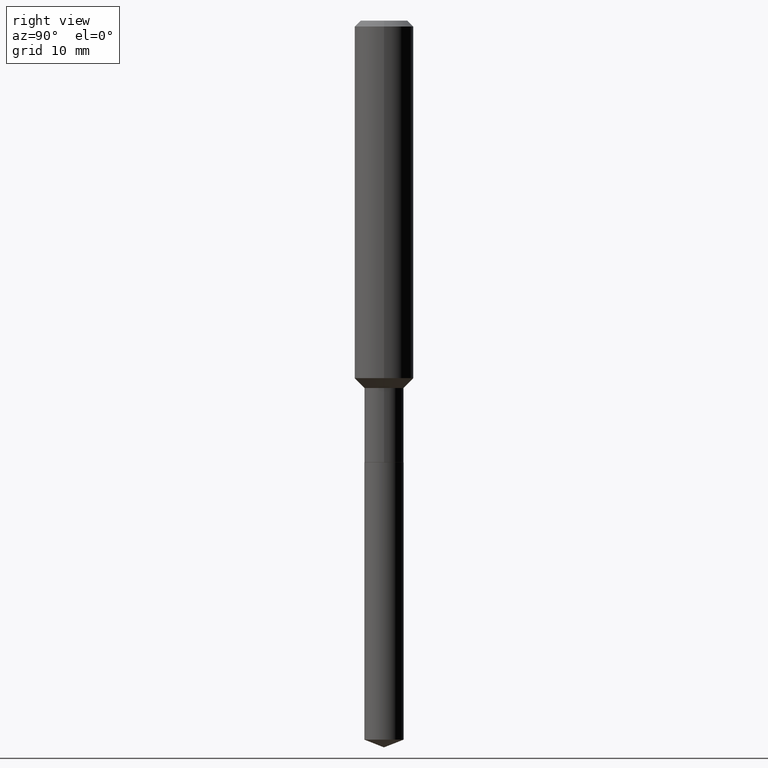
[diagram: clean part render]
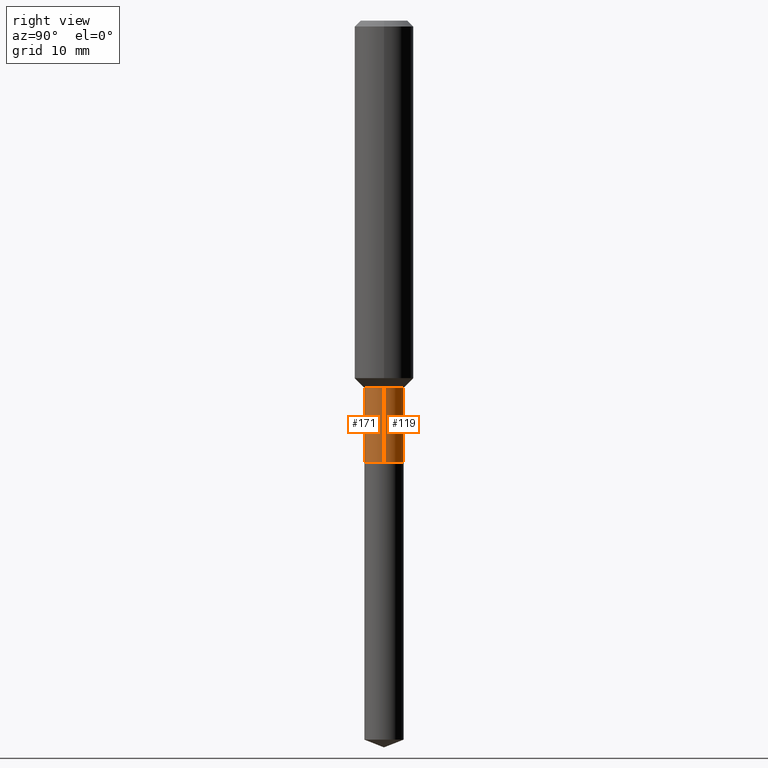
[diagram: same view with one multi-face feature highlighted, each face labeled with its STEP entity id]
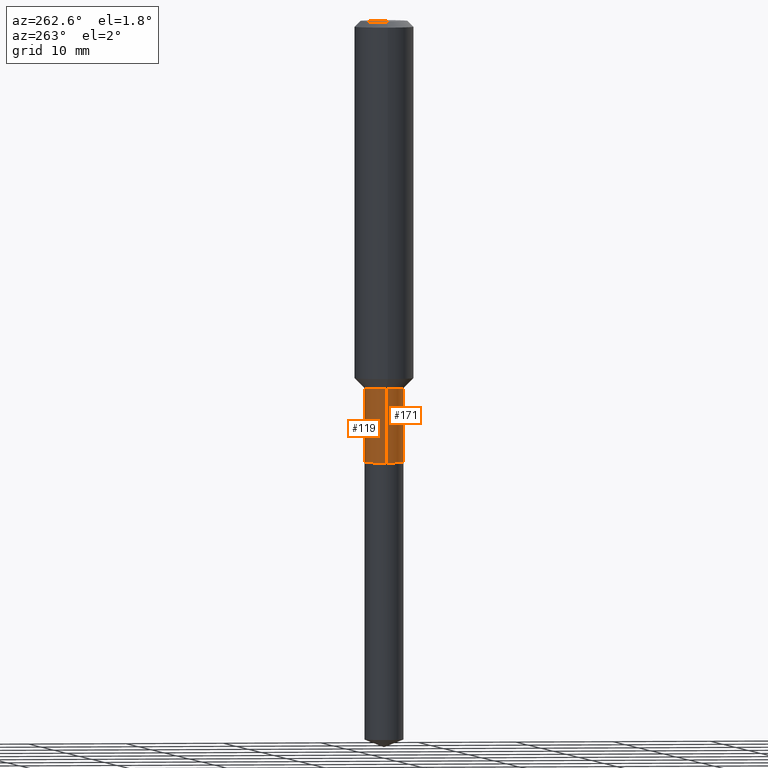
[diagram: same view with one multi-face feature highlighted, each face labeled with its STEP entity id]
A machine part, right view. The highlighted faces form ONE feature: a constant-radius fillet chain: 2 tangent blend faces with common blend radius 2.0002 mm. The faces share edges in the B-rep.
A second angle (auxiliary view) of the same feature is appended — it is thin or edge-on in the first view.
Their STEP definitions:
[1] entity #119 (Cylinder):
#2 = VERTEX_POINT ( 'NONE', #315 ) ;
#27 = AXIS2_PLACEMENT_3D ( 'NONE', #473, #318, #391 ) ;
#32 = CARTESIAN_POINT ( 'NONE',  ( 0.07874999999999997280, -5.499083108677933457E-16, 3.839989210939298316E-30 ) ) ;
#37 = VERTEX_POINT ( 'NONE', #124 ) ;
#38 = CARTESIAN_POINT ( 'NONE',  ( 4.330436161992639608E-29, -6.182715154823442375E-15, -1.770799999999999930 ) ) ;
#65 = VERTEX_POINT ( 'NONE', #204 ) ;
#89 = EDGE_CURVE ( 'NONE', #2, #37, #125, .T. ) ;
#119 = ADVANCED_FACE ( 'NONE', ( #469 ), #428, .T. ) ;
#124 = CARTESIAN_POINT ( 'NONE',  ( -0.07874999999999995892, -5.102233734656965609E-15, -1.472399999999999487 ) ) ;
#125 = CIRCLE ( 'NONE', #27, 0.07874999999999995892 ) ;
#138 = DIRECTION ( 'NONE',  ( -2.445468806185136877E-29, 3.491481338843145188E-15, 1.000000000000000000 ) ) ;
#149 = LINE ( 'NONE', #32, #474 ) ;
#168 = DIRECTION ( 'NONE',  ( -2.445468806185136597E-29, 3.491481338843145583E-15, 1.000000000000000000 ) ) ;
#181 = VERTEX_POINT ( 'NONE', #268 ) ;
#200 = VECTOR ( 'NONE', #138, 39.37007874015748143 ) ;
#204 = CARTESIAN_POINT ( 'NONE',  ( 0.07875000000000000056, -6.732623465691234932E-15, -1.770799999999999930 ) ) ;
#218 = ORIENTED_EDGE ( 'NONE', *, *, #314, .T. ) ;
#225 = CARTESIAN_POINT ( 'NONE',  ( -0.07874999999999997280, 5.595524044110787031E-16, -3.873661383575737091E-30 ) ) ;
#262 = EDGE_LOOP ( 'NONE', ( #312, #218, #292, #343 ) ) ;
#268 = CARTESIAN_POINT ( 'NONE',  ( -0.07875000000000000056, -5.102233734656965609E-15, -1.770799999999999930 ) ) ;
#274 = DIRECTION ( 'NONE',  ( 1.000000000000000000, -6.982962677686261977E-15, 0.000000000000000000 ) ) ;
#283 = DIRECTION ( 'NONE',  ( 1.000000000000000000, -6.982962677686267499E-15, 4.876176775795935793E-29 ) ) ;
#292 = ORIENTED_EDGE ( 'NONE', *, *, #89, .F. ) ;
#304 = DIRECTION ( 'NONE',  ( -2.445468806185136877E-29, 3.491481338843145188E-15, 1.000000000000000000 ) ) ;
#312 = ORIENTED_EDGE ( 'NONE', *, *, #358, .T. ) ;
#314 = EDGE_CURVE ( 'NONE', #181, #37, #412, .T. ) ;
#315 = CARTESIAN_POINT ( 'NONE',  ( 0.07874999999999995892, -5.690765434180439003E-15, -1.472399999999999487 ) ) ;
#318 = DIRECTION ( 'NONE',  ( -2.445468806185136597E-29, 3.491481338843145583E-15, 1.000000000000000000 ) ) ;
#321 = EDGE_CURVE ( 'NONE', #65, #2, #149, .T. ) ;
#339 = AXIS2_PLACEMENT_3D ( 'NONE', #38, #468, #274 ) ;
#343 = ORIENTED_EDGE ( 'NONE', *, *, #321, .F. ) ;
#355 = CARTESIAN_POINT ( 'NONE',  ( 0.000000000000000000, 0.000000000000000000, 0.000000000000000000 ) ) ;
#358 = EDGE_CURVE ( 'NONE', #65, #181, #362, .T. ) ;
#361 = AXIS2_PLACEMENT_3D ( 'NONE', #355, #168, #283 ) ;
#362 = CIRCLE ( 'NONE', #339, 0.07875000000000000056 ) ;
#391 = DIRECTION ( 'NONE',  ( 1.000000000000000000, -6.982962677686265922E-15, 0.000000000000000000 ) ) ;
#412 = LINE ( 'NONE', #225, #200 ) ;
#428 = CYLINDRICAL_SURFACE ( 'NONE', #361, 0.07874999999999997280 ) ;
#468 = DIRECTION ( 'NONE',  ( -2.445468806185136597E-29, 3.491481338843145583E-15, 1.000000000000000000 ) ) ;
#469 = FACE_OUTER_BOUND ( 'NONE', #262, .T. ) ;
#473 = CARTESIAN_POINT ( 'NONE',  ( 3.600708270226994361E-29, -5.140857123312645658E-15, -1.472399999999999487 ) ) ;
#474 = VECTOR ( 'NONE', #304, 39.37007874015748143 ) ;
[2] entity #171 (Cylinder):
#2 = VERTEX_POINT ( 'NONE', #315 ) ;
#32 = CARTESIAN_POINT ( 'NONE',  ( 0.07874999999999997280, -5.499083108677933457E-16, 3.839989210939298316E-30 ) ) ;
#37 = VERTEX_POINT ( 'NONE', #124 ) ;
#59 = CARTESIAN_POINT ( 'NONE',  ( 3.600708270226994361E-29, -5.140857123312645658E-15, -1.472399999999999487 ) ) ;
#65 = VERTEX_POINT ( 'NONE', #204 ) ;
#73 = DIRECTION ( 'NONE',  ( -2.445468806185136597E-29, 3.491481338843145583E-15, 1.000000000000000000 ) ) ;
#99 = AXIS2_PLACEMENT_3D ( 'NONE', #121, #73, #230 ) ;
#113 = ORIENTED_EDGE ( 'NONE', *, *, #314, .F. ) ;
#121 = CARTESIAN_POINT ( 'NONE',  ( 4.330436161992639608E-29, -6.182715154823442375E-15, -1.770799999999999930 ) ) ;
#124 = CARTESIAN_POINT ( 'NONE',  ( -0.07874999999999995892, -5.102233734656965609E-15, -1.472399999999999487 ) ) ;
#138 = DIRECTION ( 'NONE',  ( -2.445468806185136877E-29, 3.491481338843145188E-15, 1.000000000000000000 ) ) ;
#149 = LINE ( 'NONE', #32, #474 ) ;
#171 = ADVANCED_FACE ( 'NONE', ( #219 ), #253, .T. ) ;
#179 = EDGE_CURVE ( 'NONE', #37, #2, #427, .T. ) ;
#181 = VERTEX_POINT ( 'NONE', #268 ) ;
#183 = DIRECTION ( 'NONE',  ( 1.000000000000000000, -6.982962677686265922E-15, 0.000000000000000000 ) ) ;
#200 = VECTOR ( 'NONE', #138, 39.37007874015748143 ) ;
#204 = CARTESIAN_POINT ( 'NONE',  ( 0.07875000000000000056, -6.732623465691234932E-15, -1.770799999999999930 ) ) ;
#211 = AXIS2_PLACEMENT_3D ( 'NONE', #59, #407, #183 ) ;
#215 = ORIENTED_EDGE ( 'NONE', *, *, #397, .T. ) ;
#219 = FACE_OUTER_BOUND ( 'NONE', #477, .T. ) ;
#221 = ORIENTED_EDGE ( 'NONE', *, *, #321, .T. ) ;
#222 = DIRECTION ( 'NONE',  ( -2.445468806185136597E-29, 3.491481338843145583E-15, 1.000000000000000000 ) ) ;
#225 = CARTESIAN_POINT ( 'NONE',  ( -0.07874999999999997280, 5.595524044110787031E-16, -3.873661383575737091E-30 ) ) ;
#230 = DIRECTION ( 'NONE',  ( 1.000000000000000000, -6.982962677686261977E-15, 0.000000000000000000 ) ) ;
#253 = CYLINDRICAL_SURFACE ( 'NONE', #346, 0.07874999999999997280 ) ;
#265 = CARTESIAN_POINT ( 'NONE',  ( 0.000000000000000000, 0.000000000000000000, 0.000000000000000000 ) ) ;
#268 = CARTESIAN_POINT ( 'NONE',  ( -0.07875000000000000056, -5.102233734656965609E-15, -1.770799999999999930 ) ) ;
#304 = DIRECTION ( 'NONE',  ( -2.445468806185136877E-29, 3.491481338843145188E-15, 1.000000000000000000 ) ) ;
#314 = EDGE_CURVE ( 'NONE', #181, #37, #412, .T. ) ;
#315 = CARTESIAN_POINT ( 'NONE',  ( 0.07874999999999995892, -5.690765434180439003E-15, -1.472399999999999487 ) ) ;
#321 = EDGE_CURVE ( 'NONE', #65, #2, #149, .T. ) ;
#333 = ORIENTED_EDGE ( 'NONE', *, *, #179, .F. ) ;
#346 = AXIS2_PLACEMENT_3D ( 'NONE', #265, #222, #372 ) ;
#372 = DIRECTION ( 'NONE',  ( 1.000000000000000000, -6.982962677686267499E-15, 4.876176775795935793E-29 ) ) ;
#397 = EDGE_CURVE ( 'NONE', #181, #65, #433, .T. ) ;
#407 = DIRECTION ( 'NONE',  ( -2.445468806185136597E-29, 3.491481338843145583E-15, 1.000000000000000000 ) ) ;
#412 = LINE ( 'NONE', #225, #200 ) ;
#427 = CIRCLE ( 'NONE', #211, 0.07874999999999995892 ) ;
#433 = CIRCLE ( 'NONE', #99, 0.07875000000000000056 ) ;
#474 = VECTOR ( 'NONE', #304, 39.37007874015748143 ) ;
#477 = EDGE_LOOP ( 'NONE', ( #113, #215, #221, #333 ) ) ;